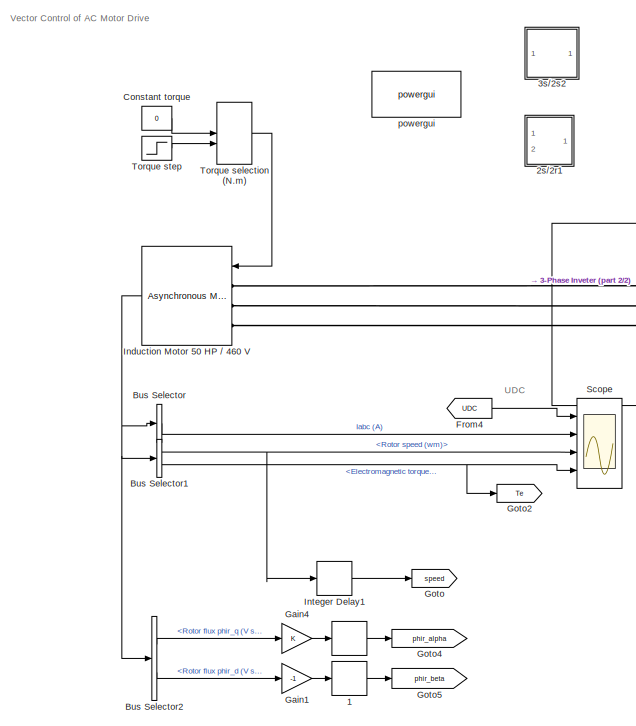
[diagram: root canvas - part 1/2, left side, full height]
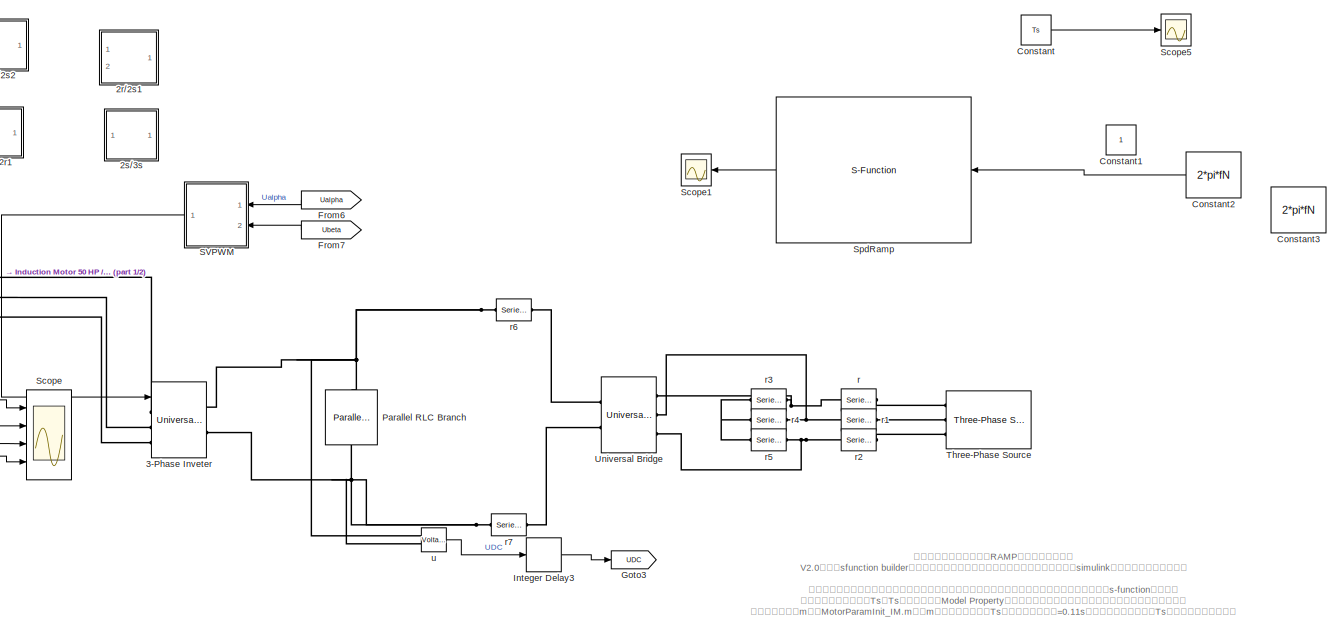
[diagram: root canvas - part 2/2, center side, full height]
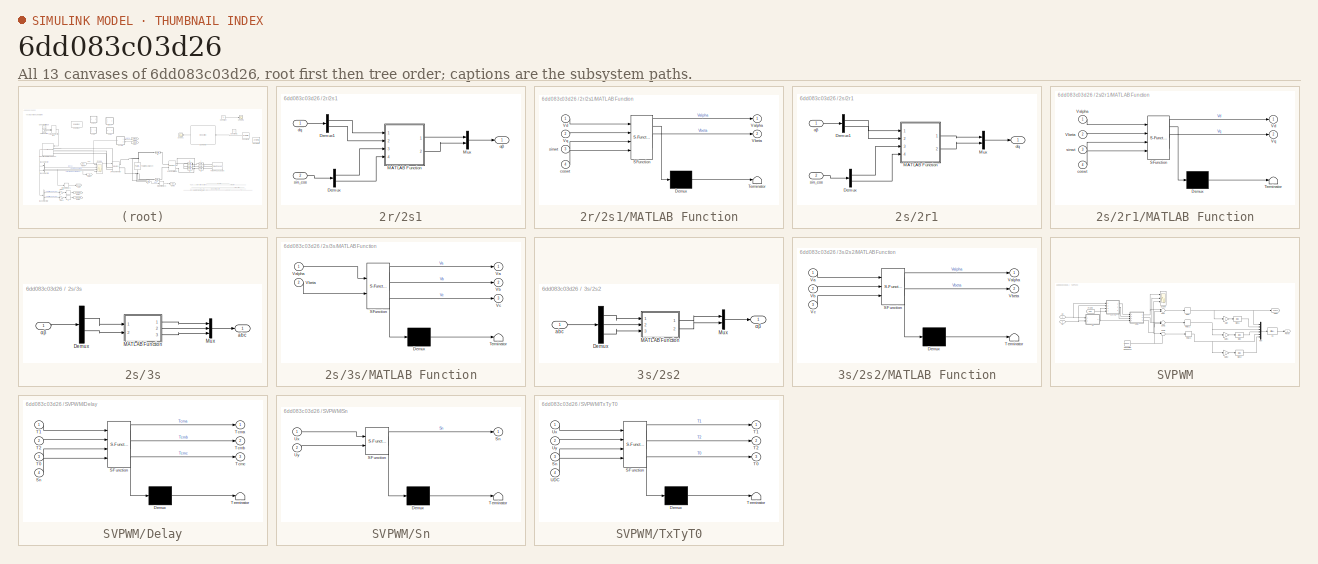
[diagram: thumbnail index - all 13 canvases of the model, root first then tree order]
MODEL slx_6dd083c03d26
KIND model
CONFIG AbsTol = auto
CONFIG EnableMultiTasking = off
CONFIG FixedStep = Ts
CONFIG InitFcn = Ts=1e-6;\n%resolute=100;\n\nrun('MotorParamInit_IM.m');\n\n\n
CONFIG MaxStep = auto
CONFIG MinStep = auto
CONFIG PreLoadFcn = %MotorParamInit_IM.m;
CONFIG RelTol = 1e-3
CONFIG SampleTimeConstraint = Unconstrained
CONFIG Solver = ode23
CONFIG SolverName = ode23
CONFIG StartTime = 0.0
CONFIG StopTime = 2
BLOCK [Delay]  
  InitialCondition = 0
  InputPortMap = u0
  Ports = [1, 1]
  SampleTime = Ts
BLOCK [Delay]  1
  InitialCondition = 0
  InputPortMap = u0
  Ports = [1, 1]
  SampleTime = Ts
BLOCK [SubSystem] 2r//2s1
  Ports = [2, 1]
  RequestExecContextInheritance = off
BLOCK [Demux] 2r//2s1/Demux
  DisplayOption = bar
  Outputs = 2
  Ports = [1, 2]
BLOCK [Demux] 2r//2s1/Demux1
  DisplayOption = bar
  Outputs = 2
  Ports = [1, 2]
BLOCK [SubSystem] 2r//2s1/MATLAB Function
  ErrorFcn = Stateflow.Translate.translate
  PermitHierarchicalResolution = ExplicitOnly
  Ports = [4, 2]
  RequestExecContextInheritance = off
  SFBlockType = MATLAB Function
  TreatAsAtomicUnit = on
BLOCK [Demux] 2r//2s1/MATLAB Function/ Demux 
  Outputs = 1
  Ports = [1, 1]
BLOCK [S-Function] 2r//2s1/MATLAB Function/ SFunction 
  EnableBusSupport = on
  FunctionName = sf_sfun
  PortCounts = [4 3]
  Ports = [4, 3]
  SFcnIsStateOwnerBlock = off
  SFunctionDeploymentMode = off
  Tag = Stateflow S-Function 17
BLOCK [Terminator] 2r//2s1/MATLAB Function/ Terminator 
BLOCK [Outport] 2r//2s1/MATLAB Function/Valpha
  IconDisplay = Port number
BLOCK [Outport] 2r//2s1/MATLAB Function/Vbeta
  IconDisplay = Port number
  Port = 2
BLOCK [Inport] 2r//2s1/MATLAB Function/Vd
  IconDisplay = Port number
BLOCK [Inport] 2r//2s1/MATLAB Function/Vq
  IconDisplay = Port number
  Port = 2
BLOCK [Inport] 2r//2s1/MATLAB Function/coswt
  IconDisplay = Port number
  Port = 4
BLOCK [Inport] 2r//2s1/MATLAB Function/sinwt
  IconDisplay = Port number
  Port = 3
BLOCK [Mux] 2r//2s1/Mux
  DisplayOption = bar
  Inputs = 2
  Ports = [2, 1]
BLOCK [Inport] 2r//2s1/dq
  IconDisplay = Port number
BLOCK [Inport] 2r//2s1/sin_cos
  IconDisplay = Port number
  Port = 2
BLOCK [Outport] 2r//2s1/αβ
  IconDisplay = Port number
BLOCK [SubSystem] 2s//2r1
  Ports = [2, 1]
  RequestExecContextInheritance = off
BLOCK [Demux] 2s//2r1/Demux
  DisplayOption = bar
  Outputs = 2
  Ports = [1, 2]
BLOCK [Demux] 2s//2r1/Demux1
  DisplayOption = bar
  Outputs = 2
  Ports = [1, 2]
BLOCK [SubSystem] 2s//2r1/MATLAB Function
  ErrorFcn = Stateflow.Translate.translate
  PermitHierarchicalResolution = ExplicitOnly
  Ports = [4, 2]
  RequestExecContextInheritance = off
  SFBlockType = MATLAB Function
  TreatAsAtomicUnit = on
BLOCK [Demux] 2s//2r1/MATLAB Function/ Demux 
  Outputs = 1
  Ports = [1, 1]
BLOCK [S-Function] 2s//2r1/MATLAB Function/ SFunction 
  EnableBusSupport = on
  FunctionName = sf_sfun
  PortCounts = [4 3]
  Ports = [4, 3]
  SFcnIsStateOwnerBlock = off
  SFunctionDeploymentMode = off
  Tag = Stateflow S-Function 18
BLOCK [Terminator] 2s//2r1/MATLAB Function/ Terminator 
BLOCK [Inport] 2s//2r1/MATLAB Function/Valpha
  IconDisplay = Port number
BLOCK [Inport] 2s//2r1/MATLAB Function/Vbeta
  IconDisplay = Port number
  Port = 2
BLOCK [Outport] 2s//2r1/MATLAB Function/Vd
  IconDisplay = Port number
BLOCK [Outport] 2s//2r1/MATLAB Function/Vq
  IconDisplay = Port number
  Port = 2
BLOCK [Inport] 2s//2r1/MATLAB Function/coswt
  IconDisplay = Port number
  Port = 4
BLOCK [Inport] 2s//2r1/MATLAB Function/sinwt
  IconDisplay = Port number
  Port = 3
BLOCK [Mux] 2s//2r1/Mux
  DisplayOption = bar
  Inputs = 2
  Ports = [2, 1]
BLOCK [Outport] 2s//2r1/dq
  IconDisplay = Port number
BLOCK [Inport] 2s//2r1/sin_cos
  IconDisplay = Port number
  Port = 2
BLOCK [Inport] 2s//2r1/αβ
  IconDisplay = Port number
BLOCK [SubSystem] 2s//3s
  Ports = [1, 1]
  RequestExecContextInheritance = off
BLOCK [Demux] 2s//3s/Demux
  DisplayOption = bar
  Outputs = 2
  Ports = [1, 2]
BLOCK [SubSystem] 2s//3s/MATLAB Function
  ErrorFcn = Stateflow.Translate.translate
  PermitHierarchicalResolution = ExplicitOnly
  Ports = [2, 3]
  RequestExecContextInheritance = off
  SFBlockType = MATLAB Function
  TreatAsAtomicUnit = on
BLOCK [Demux] 2s//3s/MATLAB Function/ Demux 
  Outputs = 1
  Ports = [1, 1]
BLOCK [S-Function] 2s//3s/MATLAB Function/ SFunction 
  EnableBusSupport = on
  FunctionName = sf_sfun
  PortCounts = [2 4]
  Ports = [2, 4]
  SFcnIsStateOwnerBlock = off
  SFunctionDeploymentMode = off
  Tag = Stateflow S-Function 6
BLOCK [Terminator] 2s//3s/MATLAB Function/ Terminator 
BLOCK [Outport] 2s//3s/MATLAB Function/Va
  IconDisplay = Port number
BLOCK [Inport] 2s//3s/MATLAB Function/Valpha
  IconDisplay = Port number
BLOCK [Outport] 2s//3s/MATLAB Function/Vb
  IconDisplay = Port number
  Port = 2
BLOCK [Inport] 2s//3s/MATLAB Function/Vbeta
  IconDisplay = Port number
  Port = 2
BLOCK [Outport] 2s//3s/MATLAB Function/Vc
  IconDisplay = Port number
  Port = 3
BLOCK [Mux] 2s//3s/Mux
  DisplayOption = bar
  Inputs = 3
  Ports = [3, 1]
BLOCK [Outport] 2s//3s/abc
  IconDisplay = Port number
BLOCK [Inport] 2s//3s/αβ
  IconDisplay = Port number
BLOCK [Reference] 3-Phase Inveter  REF=powerlib/Power
Electronics/Universal Bridge
  Ports = [1, 0, 0, 0, 0, 3, 2]
  SourceBlock = powerlib/Power\nElectronics/Universal Bridge
  SourceProductBaseCode = PS
  SourceProductName = Simscape Electrical
  SourceType = Universal Bridge
BLOCK [SubSystem] 3s//2s2
  Ports = [1, 1]
  RequestExecContextInheritance = off
BLOCK [Demux] 3s//2s2/Demux
  DisplayOption = bar
  Outputs = 3
  Ports = [1, 3]
BLOCK [SubSystem] 3s//2s2/MATLAB Function
  ErrorFcn = Stateflow.Translate.translate
  PermitHierarchicalResolution = ExplicitOnly
  Ports = [3, 2]
  RequestExecContextInheritance = off
  SFBlockType = MATLAB Function
  TreatAsAtomicUnit = on
BLOCK [Demux] 3s//2s2/MATLAB Function/ Demux 
  Outputs = 1
  Ports = [1, 1]
BLOCK [S-Function] 3s//2s2/MATLAB Function/ SFunction 
  EnableBusSupport = on
  FunctionName = sf_sfun
  PortCounts = [3 3]
  Ports = [3, 3]
  SFcnIsStateOwnerBlock = off
  SFunctionDeploymentMode = off
  Tag = Stateflow S-Function 8
BLOCK [Terminator] 3s//2s2/MATLAB Function/ Terminator 
BLOCK [Inport] 3s//2s2/MATLAB Function/Va
  IconDisplay = Port number
BLOCK [Outport] 3s//2s2/MATLAB Function/Valpha
  IconDisplay = Port number
BLOCK [Inport] 3s//2s2/MATLAB Function/Vb
  IconDisplay = Port number
  Port = 2
BLOCK [Outport] 3s//2s2/MATLAB Function/Vbeta
  IconDisplay = Port number
  Port = 2
BLOCK [Inport] 3s//2s2/MATLAB Function/Vc
  IconDisplay = Port number
  Port = 3
BLOCK [Mux] 3s//2s2/Mux
  DisplayOption = bar
  Inputs = 2
  Ports = [2, 1]
BLOCK [Inport] 3s//2s2/abc
  IconDisplay = Port number
BLOCK [Outport] 3s//2s2/αβ
  IconDisplay = Port number
BLOCK [BusSelector] Bus Selector
  OutputAsBus = on
  OutputSignals = Stator measurements.Stator current is_a (A),Stator measurements.Stator current is_b (A),Stator measurements.Stator current is_c (A)
  Ports = [1, 1]
BLOCK [BusSelector] Bus Selector1
  OutputAsBus = off
  OutputSignals = Mechanical.Rotor speed (wm),Mechanical.Electromagnetic torque Te (N*m)
  Ports = [1, 2]
BLOCK [BusSelector] Bus Selector2
  OutputAsBus = off
  OutputSignals = Rotor measurements.Rotor flux phir_q (V s),Rotor measurements.Rotor flux phir_d (V s)
  Ports = [1, 2]
BLOCK [Constant] Constant
  Value = Ts
BLOCK [Constant] Constant torque
  SampleTime = Ts
  Value = 0
BLOCK [Constant] Constant1
BLOCK [Constant] Constant2
  Value = 2*pi*fN
BLOCK [Constant] Constant3
  Value = 2*pi*fN
BLOCK [From] From4
  CloseFcn = tagdialog Close
  GotoTag = UDC
  TagVisibility = global
BLOCK [From] From6
  CloseFcn = tagdialog Close
  GotoTag = Ualpha
BLOCK [From] From7
  CloseFcn = tagdialog Close
  GotoTag = Ubeta
BLOCK [Gain] Gain1
  Gain = -1
  OutDataTypeStr = Inherit: Inherit via internal rule
  ParamDataTypeStr = Inherit: Inherit via internal rule
  SaturateOnIntegerOverflow = off
BLOCK [Gain] Gain4
  OutDataTypeStr = Inherit: Inherit via internal rule
  ParamDataTypeStr = Inherit: Inherit via internal rule
  SaturateOnIntegerOverflow = off
BLOCK [Goto] Goto
  GotoTag = speed
  TagVisibility = global
BLOCK [Goto] Goto2
  GotoTag = Te
  TagVisibility = global
BLOCK [Goto] Goto3
  GotoTag = UDC
  TagVisibility = global
BLOCK [Goto] Goto4
  GotoTag = phir_alpha
  TagVisibility = global
BLOCK [Goto] Goto5
  GotoTag = phir_beta
  TagVisibility = global
BLOCK [Reference] Induction Motor 50 HP // 460 V  REF=powerlib/Machines/Asynchronous Machine
SI Units
  AttributesFormatString = \n
  Ports = [1, 1, 0, 0, 0, 3]
  SourceBlock = powerlib/Machines/Asynchronous Machine\nSI Units
  SourceProductBaseCode = PS
  SourceProductName = Simscape Electrical
  SourceType = Asynchronous Machine
BLOCK [Delay] Integer Delay1
  InitialCondition = 0
  InputPortMap = u0
  Ports = [1, 1]
  SampleTime = Ts
BLOCK [Delay] Integer Delay3
  DelayLength = 1
  InitialCondition = 0
  InputPortMap = u0
  Ports = [1, 1]
  SampleTime = Ts
BLOCK [Reference] Parallel RLC Branch  REF=powerlib/Elements/Parallel RLC Branch
  AttributesFormatString = \n
  Ports = [0, 0, 0, 0, 0, 1, 1]
  SourceBlock = powerlib/Elements/Parallel RLC Branch
  SourceProductBaseCode = PS
  SourceProductName = Simscape Electrical
  SourceType = Parallel RLC Branch
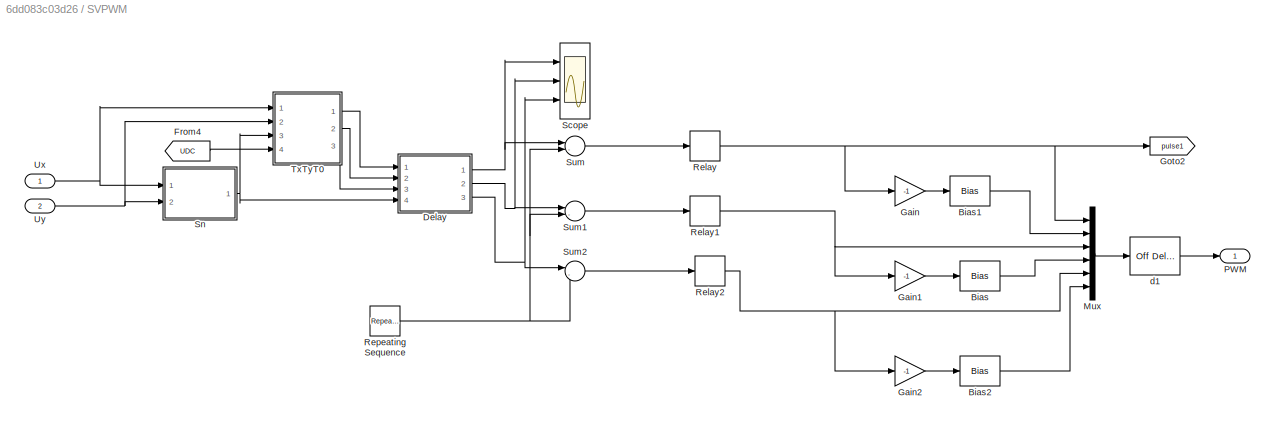
BLOCK [SubSystem] SVPWM
  Ports = [2, 1]
  RequestExecContextInheritance = off
BLOCK [Bias] SVPWM/Bias
  Bias = 1
  SaturateOnIntegerOverflow = off
BLOCK [Bias] SVPWM/Bias1
  Bias = 1
  SaturateOnIntegerOverflow = off
BLOCK [Bias] SVPWM/Bias2
  Bias = 1
  SaturateOnIntegerOverflow = off
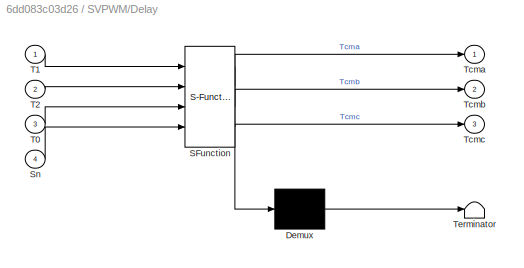
BLOCK [SubSystem] SVPWM/Delay
  ErrorFcn = Stateflow.Translate.translate
  PermitHierarchicalResolution = ExplicitOnly
  Ports = [4, 3]
  RequestExecContextInheritance = off
  SFBlockType = MATLAB Function
  TreatAsAtomicUnit = on
BLOCK [Demux] SVPWM/Delay/ Demux 
  Outputs = 1
  Ports = [1, 1]
BLOCK [S-Function] SVPWM/Delay/ SFunction 
  EnableBusSupport = on
  FunctionName = sf_sfun
  PortCounts = [4 4]
  Ports = [4, 4]
  SFcnIsStateOwnerBlock = off
  SFunctionDeploymentMode = off
  Tag = Stateflow S-Function 4
BLOCK [Terminator] SVPWM/Delay/ Terminator 
BLOCK [Inport] SVPWM/Delay/Sn
  IconDisplay = Port number
  Port = 4
BLOCK [Inport] SVPWM/Delay/T0
  IconDisplay = Port number
  Port = 3
BLOCK [Inport] SVPWM/Delay/T1
  IconDisplay = Port number
BLOCK [Inport] SVPWM/Delay/T2
  IconDisplay = Port number
  Port = 2
BLOCK [Outport] SVPWM/Delay/Tcma
  IconDisplay = Port number
BLOCK [Outport] SVPWM/Delay/Tcmb
  IconDisplay = Port number
  Port = 2
BLOCK [Outport] SVPWM/Delay/Tcmc
  IconDisplay = Port number
  Port = 3
BLOCK [From] SVPWM/From4
  CloseFcn = tagdialog Close
  GotoTag = UDC
  TagVisibility = global
BLOCK [Gain] SVPWM/Gain
  Gain = -1
  OutDataTypeStr = Inherit: Inherit via internal rule
  ParamDataTypeStr = Inherit: Inherit via internal rule
  SaturateOnIntegerOverflow = off
BLOCK [Gain] SVPWM/Gain1
  Gain = -1
  OutDataTypeStr = Inherit: Inherit via internal rule
  ParamDataTypeStr = Inherit: Inherit via internal rule
  SaturateOnIntegerOverflow = off
BLOCK [Gain] SVPWM/Gain2
  Gain = -1
  OutDataTypeStr = Inherit: Inherit via internal rule
  ParamDataTypeStr = Inherit: Inherit via internal rule
  SaturateOnIntegerOverflow = off
BLOCK [Goto] SVPWM/Goto2
  GotoTag = pulse1
  TagVisibility = global
BLOCK [Mux] SVPWM/Mux
  DisplayOption = bar
  Inputs = 6
  Ports = [6, 1]
BLOCK [Outport] SVPWM/PWM
  IconDisplay = Port number
BLOCK [Relay] SVPWM/Relay
  OffSwitchValue = 0
  OnSwitchValue = 0
BLOCK [Relay] SVPWM/Relay1
  OffSwitchValue = 0
  OnSwitchValue = 0
BLOCK [Relay] SVPWM/Relay2
  OffSwitchValue = 0
  OnSwitchValue = 0
BLOCK [Reference] SVPWM/Repeating Sequence  REF=simulink/Sources/Repeating
Sequence
  Ports = [0, 1]
  SourceBlock = simulink/Sources/Repeating\nSequence
  SourceProductBaseCode = SL
  SourceProductName = Simulink
  SourceType = Repeating table
BLOCK [Scope] SVPWM/Scope
  Floating = off
  NumInputPorts = 3
  Ports = [3]
  ScopeSpecificationString = C++SS(StrPVP('Location','[1, 60, 1921, 1019]'),StrPVP('Open','off'),StrPVP('ZoomMode','xonly'),MxPVP('AxesTitles',54,'struct(''axes1'',''%<SignalLabel>'',''axes2'',''%<SignalLabel>'',''axes3'',''%<SignalLabel>'')'),MxPVP('ScopeGraphics',57,'struct(''FigureColor'',''[0.5 0.5 0.5]'',''AxesColor'',''[0 0 0]'',''AxesTickColor'',''[1 1 1]'',''LineColors'',''[1 1 0;1 0 1;0 1 1;1 0 0;0 1 0;0 0 1]'',''Lin...<+406ch>
BLOCK [SubSystem] SVPWM/Sn
  ErrorFcn = Stateflow.Translate.translate
  PermitHierarchicalResolution = ExplicitOnly
  Ports = [2, 1]
  RequestExecContextInheritance = off
  SFBlockType = MATLAB Function
  TreatAsAtomicUnit = on
BLOCK [Demux] SVPWM/Sn/ Demux 
  Outputs = 1
  Ports = [1, 1]
BLOCK [S-Function] SVPWM/Sn/ SFunction 
  EnableBusSupport = on
  FunctionName = sf_sfun
  PortCounts = [2 2]
  Ports = [2, 2]
  SFcnIsStateOwnerBlock = off
  SFunctionDeploymentMode = off
  Tag = Stateflow S-Function 1
BLOCK [Terminator] SVPWM/Sn/ Terminator 
BLOCK [Outport] SVPWM/Sn/Sn
  IconDisplay = Port number
BLOCK [Inport] SVPWM/Sn/Ux
  IconDisplay = Port number
BLOCK [Inport] SVPWM/Sn/Uy
  IconDisplay = Port number
  Port = 2
BLOCK [Sum] SVPWM/Sum
  IconShape = round
  InputSameDT = off
  Inputs = |-+
  OutDataTypeStr = Inherit: Inherit via internal rule
  Ports = [2, 1]
  SaturateOnIntegerOverflow = off
BLOCK [Sum] SVPWM/Sum1
  IconShape = round
  InputSameDT = off
  Inputs = |-+
  OutDataTypeStr = Inherit: Inherit via internal rule
  Ports = [2, 1]
  SaturateOnIntegerOverflow = off
BLOCK [Sum] SVPWM/Sum2
  IconShape = round
  InputSameDT = off
  Inputs = |-+
  OutDataTypeStr = Inherit: Inherit via internal rule
  Ports = [2, 1]
  SaturateOnIntegerOverflow = off
BLOCK [SubSystem] SVPWM/TxTyT0
  ErrorFcn = Stateflow.Translate.translate
  PermitHierarchicalResolution = ExplicitOnly
  Ports = [4, 3]
  RequestExecContextInheritance = off
  SFBlockType = MATLAB Function
  TreatAsAtomicUnit = on
BLOCK [Demux] SVPWM/TxTyT0/ Demux 
  Outputs = 1
  Ports = [1, 1]
BLOCK [S-Function] SVPWM/TxTyT0/ SFunction 
  EnableBusSupport = on
  FunctionName = sf_sfun
  PortCounts = [4 4]
  Ports = [4, 4]
  SFcnIsStateOwnerBlock = off
  SFunctionDeploymentMode = off
  Tag = Stateflow S-Function 3
BLOCK [Terminator] SVPWM/TxTyT0/ Terminator 
BLOCK [Inport] SVPWM/TxTyT0/Sn
  IconDisplay = Port number
  Port = 3
BLOCK [Outport] SVPWM/TxTyT0/T0
  IconDisplay = Port number
  Port = 3
BLOCK [Outport] SVPWM/TxTyT0/T1
  IconDisplay = Port number
BLOCK [Outport] SVPWM/TxTyT0/T2
  IconDisplay = Port number
  Port = 2
BLOCK [Inport] SVPWM/TxTyT0/UDC
  IconDisplay = Port number
  Port = 4
BLOCK [Inport] SVPWM/TxTyT0/Ux
  IconDisplay = Port number
BLOCK [Inport] SVPWM/TxTyT0/Uy
  IconDisplay = Port number
  Port = 2
BLOCK [Inport] SVPWM/Ux
  IconDisplay = Port number
BLOCK [Inport] SVPWM/Uy
  IconDisplay = Port number
  Port = 2
BLOCK [Reference] SVPWM/d1  REF=powerlib_extras/Discrete 
Control Blocks/Discrete
On//Off Delay
  Ports = [1, 1]
  SourceBlock = powerlib_extras/Discrete \nControl Blocks/Discrete\nOn//Off Delay
  SourceProductBaseCode = PS
  SourceProductName = Simscape Electrical
  SourceType = Discrete On/Off Delay
BLOCK [Scope] Scope
  Floating = off
  NumInputPorts = 4
  Ports = [4]
  ScopeSpecificationString = C++SS(StrPVP('Location','[5, 34, 1925, 993]'),StrPVP('Open','off'),StrPVP('ZoomMode','yonly'),MxPVP('AxesTitles',54,'struct(''axes1'',''%<SignalLabel>'',''axes2'',''%<SignalLabel>'',''axes3'',''%<SignalLabel>'',''axes4'',''%<SignalLabel>'')'),MxPVP('ScopeGraphics',57,'struct(''FigureColor'',''[0.5 0.5 0.5]'',''AxesColor'',''[0 0 0]'',''AxesTickColor'',''[1 1 1]'',''LineColors'',''[1 1 0;1 0 1;0 1 ...<+467ch>
BLOCK [Scope] Scope1
  Floating = off
  NumInputPorts = 1
  Ports = [1]
  ScopeSpecificationString = Simulink.scopes.TimeScopeBlockCfg('CurrentConfiguration', extmgr.ConfigurationSet(extmgr.Configuration('Core','General UI',true,'FigureColor',[1 1 1]),extmgr.Configuration('Core','Source UI',true),extmgr.Configuration('Sources','WiredSimulink',true,'DataLoggingVariableName','ScopeData1'),extmgr.Configuration('Visuals','Time Domain',true,'SerializedDisplays',{struct('MinYLimReal','-39.26991','MaxYL...<+1595ch>
BLOCK [Scope] Scope5
  Floating = off
  NumInputPorts = 1
  Ports = [1]
  ScopeSpecificationString = Simulink.scopes.TimeScopeBlockCfg('CurrentConfiguration', extmgr.ConfigurationSet(extmgr.Configuration('Core','General UI',true,'FigureColor',[1 1 1]),extmgr.Configuration('Core','Source UI',true),extmgr.Configuration('Sources','WiredSimulink',true,'DataLoggingVariableName','ScopeData5'),extmgr.Configuration('Visuals','Time Domain',true,'SerializedDisplays',{struct('MinYLimReal','0.01764','MaxYLim...<+1599ch>
BLOCK [S-Function] SpdRamp
  CopyFcn = set_param(gcbh,'LinkStatus','none')
  EnableBusSupport = off
  FunctionName = BasicRamp
  InitFcn = try, set_param(gcb,'FunctionName','BasicRamp'), end
  OpenFcn = sfunctionwizard(gcbh)
  Parameters = 1,1,2*pi*fN,Ts
  Ports = [1, 1]
  PreSaveFcn = try, set_param(gcb,'FunctionName','BasicRamp'), end
  SFcnIsStateOwnerBlock = off
  SFunctionDeploymentMode = off
  SFunctionModules = BasicRamp_wrapper
BLOCK [Reference] Three-Phase Source  REF=powerlib/Electrical
Sources/Three-Phase Source
  Ports = [0, 0, 0, 0, 0, 0, 3]
  SourceBlock = powerlib/Electrical\nSources/Three-Phase Source
  SourceProductBaseCode = PS
  SourceProductName = Simscape Electrical
  SourceType = Three-Phase Source
BLOCK [ManualSwitch] Torque selection (N.m)
BLOCK [Step] Torque step
  After = 5
  SampleTime = Ts
BLOCK [Reference] Universal Bridge  REF=powerlib/Power
Electronics/Universal Bridge
  Ports = [0, 0, 0, 0, 0, 3, 2]
  SourceBlock = powerlib/Power\nElectronics/Universal Bridge
  SourceProductBaseCode = PS
  SourceProductName = Simscape Electrical
  SourceType = Universal Bridge
BLOCK [Reference] powergui  REF=powerlib/powergui
  Ports = []
  Priority = 2
  SourceBlock = powerlib/powergui
  SourceProductBaseCode = PS
  SourceProductName = Simscape Electrical
  SourceType = PSB option menu block
BLOCK [Reference] r  REF=powerlib/Elements/Series RLC Branch
  Ports = [0, 0, 0, 0, 0, 1, 1]
  SourceBlock = powerlib/Elements/Series RLC Branch
  SourceProductBaseCode = PS
  SourceProductName = Simscape Electrical
  SourceType = Series RLC Branch
BLOCK [Reference] r1  REF=powerlib/Elements/Series RLC Branch
  Ports = [0, 0, 0, 0, 0, 1, 1]
  SourceBlock = powerlib/Elements/Series RLC Branch
  SourceProductBaseCode = PS
  SourceProductName = Simscape Electrical
  SourceType = Series RLC Branch
BLOCK [Reference] r2  REF=powerlib/Elements/Series RLC Branch
  Ports = [0, 0, 0, 0, 0, 1, 1]
  SourceBlock = powerlib/Elements/Series RLC Branch
  SourceProductBaseCode = PS
  SourceProductName = Simscape Electrical
  SourceType = Series RLC Branch
BLOCK [Reference] r3  REF=powerlib/Elements/Series RLC Branch
  Ports = [0, 0, 0, 0, 0, 1, 1]
  SourceBlock = powerlib/Elements/Series RLC Branch
  SourceProductBaseCode = PS
  SourceProductName = Simscape Electrical
  SourceType = Series RLC Branch
BLOCK [Reference] r4  REF=powerlib/Elements/Series RLC Branch
  Ports = [0, 0, 0, 0, 0, 1, 1]
  SourceBlock = powerlib/Elements/Series RLC Branch
  SourceProductBaseCode = PS
  SourceProductName = Simscape Electrical
  SourceType = Series RLC Branch
BLOCK [Reference] r5  REF=powerlib/Elements/Series RLC Branch
  Ports = [0, 0, 0, 0, 0, 1, 1]
  SourceBlock = powerlib/Elements/Series RLC Branch
  SourceProductBaseCode = PS
  SourceProductName = Simscape Electrical
  SourceType = Series RLC Branch
BLOCK [Reference] r6  REF=powerlib/Elements/Series RLC Branch
  Ports = [0, 0, 0, 0, 0, 1, 1]
  SourceBlock = powerlib/Elements/Series RLC Branch
  SourceProductBaseCode = PS
  SourceProductName = Simscape Electrical
  SourceType = Series RLC Branch
BLOCK [Reference] r7  REF=powerlib/Elements/Series RLC Branch
  Ports = [0, 0, 0, 0, 0, 1, 1]
  SourceBlock = powerlib/Elements/Series RLC Branch
  SourceProductBaseCode = PS
  SourceProductName = Simscape Electrical
  SourceType = Series RLC Branch
BLOCK [Reference] u  REF=powerlib/Measurements/Voltage Measurement
  AttributesFormatString = \n
  Ports = [0, 1, 0, 0, 0, 2]
  SourceBlock = powerlib/Measurements/Voltage Measurement
  SourceProductBaseCode = PS
  SourceProductName = Simscape Electrical
  SourceType = Voltage Measurement
  Tag = PoWeRsYsTeMmEaSuReMeNt
ANNOTATION (root): UDC
ANNOTATION (root): Vector Control of AC Motor Drive
ANNOTATION (root): 开发日志，试图搭建一个RAMP模块用于速度给定 V2.0版：用sfunction builder搭建斜坡模块，仿真速度也会变慢，暂时可能得考虑用simulink自带的模块搭建斜坡模块 另外，在开发斜坡模块的过程中碰到过一个斜坡模块输出变化特别快的问题，经过查找是因为：往s-function斜坡模块 中送的采样时间是变量Ts，Ts是在仿真模型Model Property中定义的仿真步长。但是由于仿真时工作区间中导入了一个 计算电机参数的m文件MotorParamInit_IM.m，该m文件中有一个变量Ts（定子时间常数）=0.11s，把仿真模型中的变量Ts覆盖了，导致送到斜坡 模块中的采样时间是错的，因此斜坡模块的输出也跟着出错了。
LINE  1:1 -> Goto5:1
LINE  :1 -> Goto4:1
LINE 2r//2s1/Demux1:1 -> 2r//2s1/MATLAB Function:1
LINE 2r//2s1/Demux1:2 -> 2r//2s1/MATLAB Function:2
LINE 2r//2s1/Demux:1 -> 2r//2s1/MATLAB Function:3
LINE 2r//2s1/Demux:2 -> 2r//2s1/MATLAB Function:4
LINE 2r//2s1/MATLAB Function:1 -> 2r//2s1/Mux:1
LINE 2r//2s1/MATLAB Function:2 -> 2r//2s1/Mux:2
LINE 2r//2s1/Mux:1 -> 2r//2s1/αβ:1
LINE 2r//2s1/dq:1 -> 2r//2s1/Demux1:1
LINE 2r//2s1/sin_cos:1 -> 2r//2s1/Demux:1
LINE 2s//2r1/Demux1:1 -> 2s//2r1/MATLAB Function:1
LINE 2s//2r1/Demux1:2 -> 2s//2r1/MATLAB Function:2
LINE 2s//2r1/Demux:1 -> 2s//2r1/MATLAB Function:3
LINE 2s//2r1/Demux:2 -> 2s//2r1/MATLAB Function:4
LINE 2s//2r1/MATLAB Function:1 -> 2s//2r1/Mux:1
LINE 2s//2r1/MATLAB Function:2 -> 2s//2r1/Mux:2
LINE 2s//2r1/Mux:1 -> 2s//2r1/dq:1
LINE 2s//2r1/sin_cos:1 -> 2s//2r1/Demux:1
LINE 2s//2r1/αβ:1 -> 2s//2r1/Demux1:1
LINE 2s//3s/Demux:1 -> 2s//3s/MATLAB Function:1
LINE 2s//3s/Demux:2 -> 2s//3s/MATLAB Function:2
LINE 2s//3s/MATLAB Function:1 -> 2s//3s/Mux:1
LINE 2s//3s/MATLAB Function:2 -> 2s//3s/Mux:2
LINE 2s//3s/MATLAB Function:3 -> 2s//3s/Mux:3
LINE 2s//3s/Mux:1 -> 2s//3s/abc:1
LINE 2s//3s/αβ:1 -> 2s//3s/Demux:1
LINE 3s//2s2/Demux:1 -> 3s//2s2/MATLAB Function:1
LINE 3s//2s2/Demux:2 -> 3s//2s2/MATLAB Function:2
LINE 3s//2s2/Demux:3 -> 3s//2s2/MATLAB Function:3
LINE 3s//2s2/MATLAB Function:1 -> 3s//2s2/Mux:1
LINE 3s//2s2/MATLAB Function:2 -> 3s//2s2/Mux:2
LINE 3s//2s2/Mux:1 -> 3s//2s2/αβ:1
LINE 3s//2s2/abc:1 -> 3s//2s2/Demux:1
NET Bus Selector1:1 -> Integer Delay1:1, Scope:3
NET Bus Selector1:2 -> Goto2:1, Scope:4
LINE Bus Selector2:1 -> Gain4:1
LINE Bus Selector2:2 -> Gain1:1
LINE Bus Selector:1 -> Scope:2
LINE Constant torque:1 -> Torque selection (N.m):1
LINE Constant2:1 -> SpdRamp:1
LINE Constant:1 -> Scope5:1
LINE From4:1 -> Scope:1
LINE From6:1 -> SVPWM:1
LINE From7:1 -> SVPWM:2
LINE Gain1:1 ->  1:1
LINE Gain4:1 ->  :1
NET Induction Motor 50 HP // 460 V:1 -> Bus Selector1:1, Bus Selector2:1, Bus Selector:1
LINE Integer Delay1:1 -> Goto:1
LINE Integer Delay3:1 -> Goto3:1
LINE SVPWM/Bias1:1 -> SVPWM/Mux:2
LINE SVPWM/Bias2:1 -> SVPWM/Mux:6
LINE SVPWM/Bias:1 -> SVPWM/Mux:4
NET SVPWM/Delay:1 -> SVPWM/Scope:1, SVPWM/Sum:1
NET SVPWM/Delay:2 -> SVPWM/Scope:2, SVPWM/Sum1:1
NET SVPWM/Delay:3 -> SVPWM/Scope:3, SVPWM/Sum2:1
LINE SVPWM/From4:1 -> SVPWM/TxTyT0:4
LINE SVPWM/Gain1:1 -> SVPWM/Bias:1
LINE SVPWM/Gain2:1 -> SVPWM/Bias2:1
LINE SVPWM/Gain:1 -> SVPWM/Bias1:1
LINE SVPWM/Mux:1 -> SVPWM/d1:1
NET SVPWM/Relay1:1 -> SVPWM/Gain1:1, SVPWM/Mux:3
NET SVPWM/Relay2:1 -> SVPWM/Gain2:1, SVPWM/Mux:5
NET SVPWM/Relay:1 -> SVPWM/Gain:1, SVPWM/Goto2:1, SVPWM/Mux:1
NET SVPWM/Repeating Sequence:1 -> SVPWM/Sum1:2, SVPWM/Sum2:2, SVPWM/Sum:2
NET SVPWM/Sn:1 -> SVPWM/Delay:4, SVPWM/TxTyT0:3
LINE SVPWM/Sum1:1 -> SVPWM/Relay1:1
LINE SVPWM/Sum2:1 -> SVPWM/Relay2:1
LINE SVPWM/Sum:1 -> SVPWM/Relay:1
LINE SVPWM/TxTyT0:1 -> SVPWM/Delay:1
LINE SVPWM/TxTyT0:2 -> SVPWM/Delay:2
LINE SVPWM/TxTyT0:3 -> SVPWM/Delay:3
NET SVPWM/Ux:1 -> SVPWM/Sn:1, SVPWM/TxTyT0:1
NET SVPWM/Uy:1 -> SVPWM/Sn:2, SVPWM/TxTyT0:2
LINE SVPWM/d1:1 -> SVPWM/PWM:1
LINE SVPWM:1 -> 3-Phase Inveter:1
LINE SpdRamp:1 -> Scope1:1
LINE Torque selection (N.m):1 -> Induction Motor 50 HP // 460 V:1
LINE Torque step:1 -> Torque selection (N.m):2
LINE u:1 -> Integer Delay3:1
PLINE 3-Phase Inveter:LConn1 -- Induction Motor 50 HP // 460 V:LConn1
PLINE 3-Phase Inveter:LConn2 -- Induction Motor 50 HP // 460 V:LConn2
PLINE 3-Phase Inveter:LConn3 -- Induction Motor 50 HP // 460 V:LConn3
PNET net1: 3-Phase Inveter:RConn1 -- Parallel RLC Branch:LConn1 -- r6:LConn1 -- u:LConn1
PNET net2: 3-Phase Inveter:RConn2 -- Parallel RLC Branch:RConn1 -- r7:LConn1 -- u:LConn2
PLINE Three-Phase Source:RConn1 -- r:RConn1
PLINE Three-Phase Source:RConn2 -- r1:RConn1
PLINE Three-Phase Source:RConn3 -- r2:RConn1
PNET net3: Universal Bridge:LConn1 -- r3:RConn1 -- r:LConn1
PNET net4: Universal Bridge:LConn2 -- r1:LConn1 -- r4:RConn1
PNET net5: Universal Bridge:LConn3 -- r2:LConn1 -- r5:RConn1
PLINE Universal Bridge:RConn1 -- r6:RConn1
PLINE Universal Bridge:RConn2 -- r7:RConn1
PNET net6: r3:LConn1 -- r4:LConn1 -- r5:LConn1
note: NET lines group one-source signal fan-out (src -> all destinations, sorted); 1:1 wires keep LINE; PNET lines group multi-terminal physical nets as a canonical sorted terminal list (undirected conserving connections); 2-terminal nets keep the pairwise PLINE form
CHART SVPWM/Sn states=1 transitions=1
  STATE_LABEL 'eML_blk_kernel()'
  STATE_LABEL 'SCRIPT:\nfunction Sn = S(Ux,Uy)\ntheta=atan2(Uy,Ux)*180/pi;\nif theta>=0&&theta<60\n    Sn=1;\nelseif theta>=60&&theta<120\n    Sn=2;\nelseif theta>=120&&theta<180\n    Sn=3;\nelseif theta>=-180&&theta<-120\n    Sn=4;\nelseif theta>=-120&&theta<-60\n    Sn=5;\nelse Sn=6;\nend'
CHART SVPWM/TxTyT0 states=1 transitions=1
  STATE_LABEL 'eML_blk_kernel()'
  STATE_LABEL 'SCRIPT:\nfunction [T1,T2,T0]=T(Ux,Uy,Sn,UDC)\nTs=1/5000;\nUdc=UDC;\n\nX=sqrt(3)*Ts/Udc*Uy;\nY=sqrt(3)*Ts/2/Udc*(sqrt(3)*Ux+Uy);\nZ=sqrt(3)*Ts/2/Udc*(-sqrt(3)*Ux+Uy);\n\nif Sn==1\n    T1=-Z;T2=X;\nelseif Sn==2;\n    T1=Z;T2=Y;\nelseif Sn==3;\n    T1=X;T2=-Y;\nelseif Sn==4;\n    T1=-X;T2=Z;\nelseif Sn==5;\n    T1=-Y;T2=-Z;\nelse T1=Y;T2=-X;\nend\n    \nif T1+T2>Ts\n    a=T1;b=T2;\n    T1=a*Ts/(a+b);\n    T2=b*Ts/(a+b);\nend\n...<+32ch>'
CHART SVPWM/Delay states=1 transitions=1
  STATE_LABEL 'eML_blk_kernel()'
  STATE_LABEL 'SCRIPT:\nfunction [Tcma,Tcmb,Tcmc]=D(T1,T2,T0,Sn)\nT=1/5000;\nton1=0.25*T0;\nton2=ton1+T1/2;\nton3=ton2+T2/2;\nif Sn==1\n    Tcma=ton1;Tcmb=ton2;Tcmc=ton3;\nelseif Sn==2;\n    Tcma=ton2;Tcmb=ton1;Tcmc=ton3;\nelseif Sn==3;\n    Tcma=ton3;Tcmb=ton1;Tcmc=ton2;\nelseif Sn==4;\n    Tcma=ton3;Tcmb=ton2;Tcmc=ton1;\nelseif Sn==5;\n    Tcma=ton2;Tcmb=ton3;Tcmc=ton1;\nelse Tcma=ton1;Tcmb=ton3;Tcmc=ton2;\nend\n        \n      ...<+3ch>'
CHART 2s//3s/MATLAB Function states=1 transitions=1
  STATE_LABEL 'eML_blk_kernel()'
  STATE_LABEL 'SCRIPT:\nfunction [Va, Vb, Vc] = Park(Valpha, Vbeta)\n%#codegen\nVa = sqrt(2/3)*Valpha;\nVb = -Valpha/sqrt(6) + Vbeta/sqrt(2);\nVc = -Valpha/sqrt(6) - Vbeta/sqrt(2);'
CHART 3s//2s2/MATLAB Function states=1 transitions=1
  STATE_LABEL 'eML_blk_kernel()'
  STATE_LABEL 'SCRIPT:\nfunction [Valpha, Vbeta] = Park(Va, Vb, Vc)\n%#codegen\nValpha = sqrt(2/3)*(Va - Vb/2 -Vc/2);\nVbeta  = sqrt(2/3)*(sqrt(3)*Vb/2 - sqrt(3)*Vc/2);'
CHART 2r//2s1/MATLAB Function states=1 transitions=1
  STATE_LABEL 'eML_blk_kernel()'
  STATE_LABEL 'SCRIPT:\nfunction [Valpha, Vbeta] = fcn(Vd, Vq, sinwt, coswt)\n%#codegen\n\nValpha = Vd*coswt - Vq*sinwt;\nVbeta  = Vd*sinwt + Vq*coswt;'
CHART 2s//2r1/MATLAB Function states=1 transitions=1
  STATE_LABEL 'eML_blk_kernel()'
  STATE_LABEL 'SCRIPT:\nfunction [Vd, Vq] = fcn(Valpha, Vbeta, sinwt, coswt)\n%#codegen\n\nVd =  Valpha*coswt + Vbeta*sinwt;\nVq = -Valpha*sinwt + Vbeta*coswt;'
